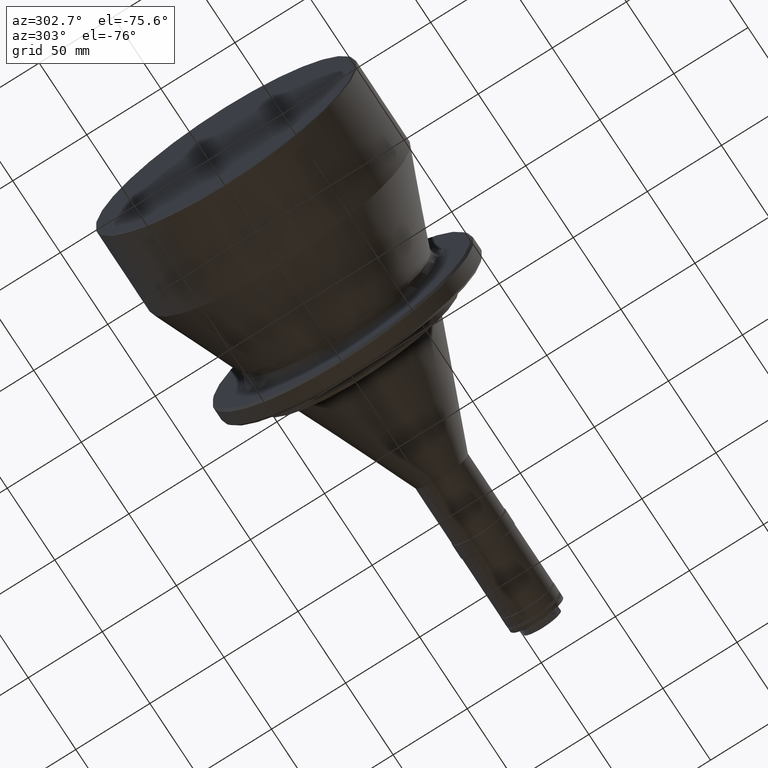
[diagram: clean part render]
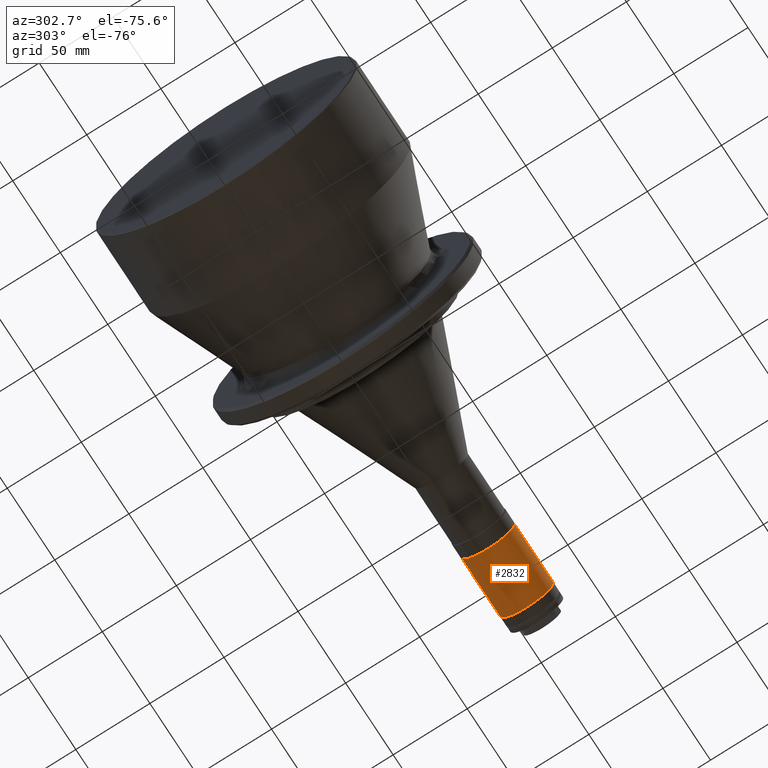
[diagram: same view with one face highlighted and labeled with its STEP entity id]
A machine part, auxiliary view. The second image highlights one B-rep face of the part: STEP entity #2832.
In plain terms, the highlighted cylindrical surface (edge-blend (fillet) strip) has radius 18 mm, axis along (1, -0, -0).
Its self-contained STEP definition (entity closure, byte-faithful):
#53 = CARTESIAN_POINT ( 'NONE',  ( 345.1275145715000000, -18.00000000000001100, -68.22315000000000400 ) ) ;
#198 = FACE_OUTER_BOUND ( 'NONE', #5589, .T. ) ;
#219 = VERTEX_POINT ( 'NONE', #5257 ) ;
#451 = CARTESIAN_POINT ( 'NONE',  ( 293.8444470055606500, -18.00000000000000400, -68.22315000000000400 ) ) ;
#676 = DIRECTION ( 'NONE',  ( 1.000000000000000000, -8.492394904561674800E-017, -0.0000000000000000000 ) ) ;
#728 = DIRECTION ( 'NONE',  ( 1.000000000000000000, -8.492394904561674800E-017, -0.0000000000000000000 ) ) ;
#777 = DIRECTION ( 'NONE',  ( 1.000000000000000000, -8.492394904561674800E-017, -0.0000000000000000000 ) ) ;
#785 = CARTESIAN_POINT ( 'NONE',  ( 293.8444470055606500, 4.355160616872751300E-015, -68.22315000000000400 ) ) ;
#1133 = DIRECTION ( 'NONE',  ( 0.0000000000000000000, 1.000000000000000000, 0.0000000000000000000 ) ) ;
#1240 = LINE ( 'NONE', #5316, #4428 ) ;
#2064 = CIRCLE ( 'NONE', #3884, 18.00000000000000700 ) ;
#2216 = LINE ( 'NONE', #53, #6941 ) ;
#2279 = CIRCLE ( 'NONE', #5664, 18.00000000000001100 ) ;
#2683 = CARTESIAN_POINT ( 'NONE',  ( 345.1275145715000000, 0.0000000000000000000, -68.22315000000000400 ) ) ;
#2832 = ADVANCED_FACE ( 'NONE', ( #198 ), #6171, .T. ) ;
#2911 = AXIS2_PLACEMENT_3D ( 'NONE', #2683, #7405, #5639 ) ;
#2969 = CARTESIAN_POINT ( 'NONE',  ( 293.8444470055606500, 18.00000000000001100, -68.22315000000000400 ) ) ;
#2972 = CARTESIAN_POINT ( 'NONE',  ( 334.7275145715775000, -18.00000000000001100, -68.22315000000000400 ) ) ;
#3594 = VERTEX_POINT ( 'NONE', #2972 ) ;
#3625 = EDGE_CURVE ( 'NONE', #5999, #3594, #2216, .T. ) ;
#3884 = AXIS2_PLACEMENT_3D ( 'NONE', #785, #6000, #4849 ) ;
#4428 = VECTOR ( 'NONE', #777, 1000.000000000000000 ) ;
#4849 = DIRECTION ( 'NONE',  ( 0.0000000000000000000, 1.000000000000000000, 0.0000000000000000000 ) ) ;
#5257 = CARTESIAN_POINT ( 'NONE',  ( 334.7275145715775000, 18.00000000000001100, -68.22315000000000400 ) ) ;
#5299 = EDGE_CURVE ( 'NONE', #3594, #219, #2279, .T. ) ;
#5316 = CARTESIAN_POINT ( 'NONE',  ( 345.1275145715000000, 18.00000000000001100, -68.22315000000000400 ) ) ;
#5589 = EDGE_LOOP ( 'NONE', ( #7261, #5698, #6689, #6307 ) ) ;
#5639 = DIRECTION ( 'NONE',  ( 0.0000000000000000000, 1.000000000000000000, 0.0000000000000000000 ) ) ;
#5664 = AXIS2_PLACEMENT_3D ( 'NONE', #5856, #676, #1133 ) ;
#5698 = ORIENTED_EDGE ( 'NONE', *, *, #6627, .T. ) ;
#5856 = CARTESIAN_POINT ( 'NONE',  ( 334.7275145715775000, 8.832090700678303800E-016, -68.22315000000000400 ) ) ;
#5999 = VERTEX_POINT ( 'NONE', #451 ) ;
#6000 = DIRECTION ( 'NONE',  ( 1.000000000000000000, -8.492394904561674800E-017, -0.0000000000000000000 ) ) ;
#6168 = VERTEX_POINT ( 'NONE', #2969 ) ;
#6171 = CYLINDRICAL_SURFACE ( 'NONE', #2911, 18.00000000000001100 ) ;
#6307 = ORIENTED_EDGE ( 'NONE', *, *, #5299, .F. ) ;
#6627 = EDGE_CURVE ( 'NONE', #5999, #6168, #2064, .T. ) ;
#6689 = ORIENTED_EDGE ( 'NONE', *, *, #7038, .T. ) ;
#6941 = VECTOR ( 'NONE', #728, 1000.000000000000000 ) ;
#7038 = EDGE_CURVE ( 'NONE', #6168, #219, #1240, .T. ) ;
#7261 = ORIENTED_EDGE ( 'NONE', *, *, #3625, .F. ) ;
#7405 = DIRECTION ( 'NONE',  ( 1.000000000000000000, -8.492394904561674800E-017, -0.0000000000000000000 ) ) ;